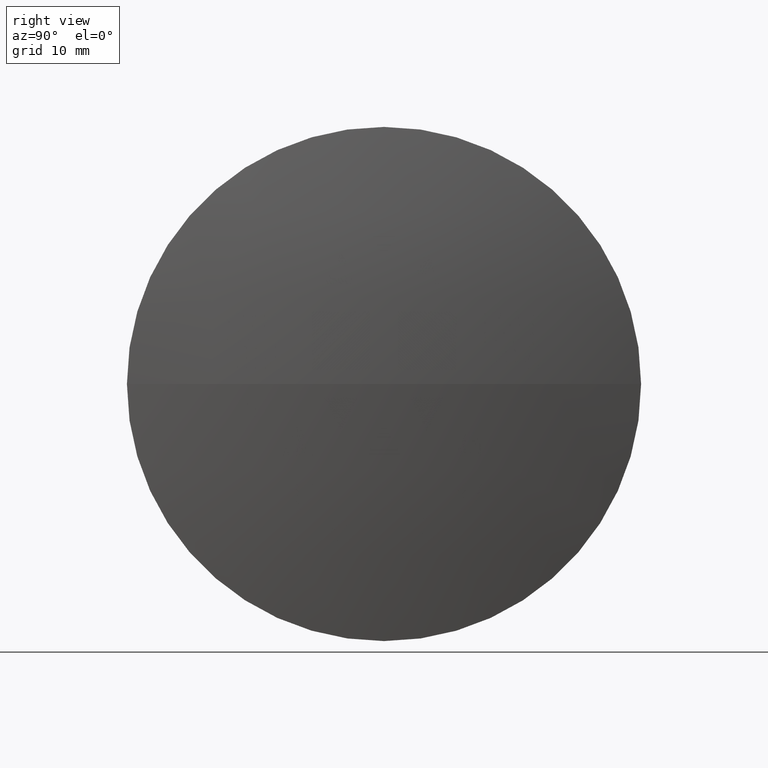
[diagram: clean part render]
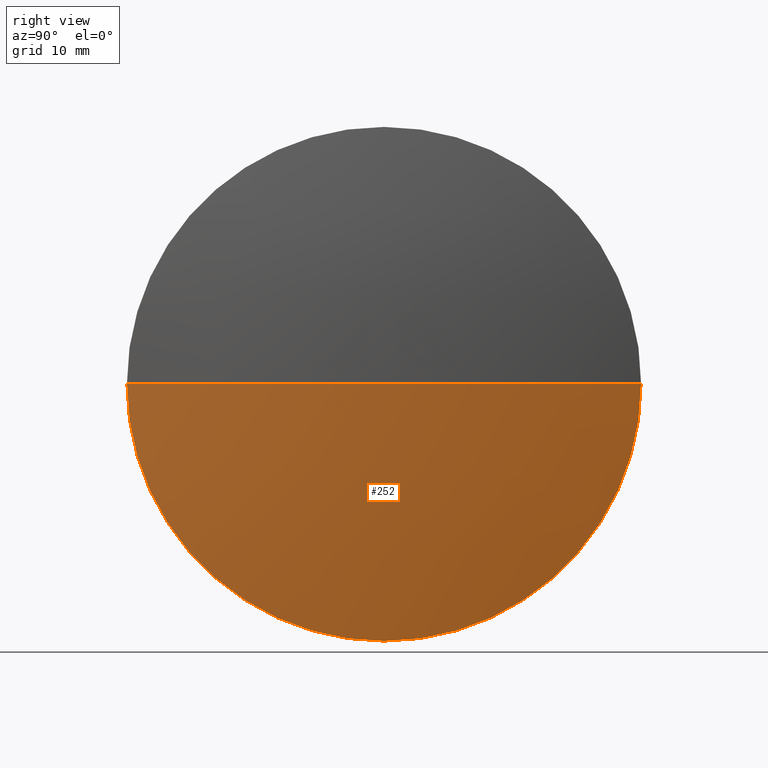
[diagram: same view with one face highlighted and labeled with its STEP entity id]
A machine part, right view. The second image highlights one B-rep face of the part: STEP entity #252.
In plain terms, the highlighted spherical surface has radius 135.608 mm.
Its self-contained STEP definition (entity closure, byte-faithful):
#1 = DIRECTION ( 'NONE',  ( 0.0000000000000000000, 1.000000000000000000, 1.224646799147353200E-016 ) ) ;
#4 = CARTESIAN_POINT ( 'NONE',  ( 174.4163664064679400, 71.83222604636907200, -3.110602869834221600E-015 ) ) ;
#11 = EDGE_CURVE ( 'NONE', #256, #63, #77, .T. ) ;
#12 = DIRECTION ( 'NONE',  ( -0.0000000000000000000, 0.0000000000000000000, -1.000000000000000000 ) ) ;
#13 = CIRCLE ( 'NONE', #55, 25.39999999999999100 ) ;
#26 = AXIS2_PLACEMENT_3D ( 'NONE', #341, #215, #181 ) ;
#33 = DIRECTION ( 'NONE',  ( 0.0000000000000000000, 1.224646799147353200E-016, -1.000000000000000000 ) ) ;
#41 = DIRECTION ( 'NONE',  ( 0.0000000000000000000, 1.000000000000000000, 0.0000000000000000000 ) ) ;
#43 = EDGE_CURVE ( 'NONE', #63, #238, #13, .T. ) ;
#55 = AXIS2_PLACEMENT_3D ( 'NONE', #119, #85, #138 ) ;
#56 = CARTESIAN_POINT ( 'NONE',  ( 174.4163664064679400, 97.23222604636956100, -25.39999999999999100 ) ) ;
#60 = CARTESIAN_POINT ( 'NONE',  ( 176.8163761207535200, 97.23222604636863800, 0.0000000000000000000 ) ) ;
#63 = VERTEX_POINT ( 'NONE', #56 ) ;
#76 = SPHERICAL_SURFACE ( 'NONE', #201, 135.6077941589554100 ) ;
#77 = CIRCLE ( 'NONE', #26, 25.39999999999999100 ) ;
#85 = DIRECTION ( 'NONE',  ( -1.000000000000000000, -0.0000000000000000000, -0.0000000000000000000 ) ) ;
#105 = EDGE_CURVE ( 'NONE', #226, #256, #251, .T. ) ;
#109 = FACE_OUTER_BOUND ( 'NONE', #211, .T. ) ;
#119 = CARTESIAN_POINT ( 'NONE',  ( 174.4163664064679400, 97.23222604636956100, 0.0000000000000000000 ) ) ;
#138 = DIRECTION ( 'NONE',  ( 0.0000000000000000000, 0.0000000000000000000, 1.000000000000000000 ) ) ;
#181 = DIRECTION ( 'NONE',  ( 0.0000000000000000000, 0.0000000000000000000, 1.000000000000000000 ) ) ;
#201 = AXIS2_PLACEMENT_3D ( 'NONE', #320, #12, #41 ) ;
#206 = AXIS2_PLACEMENT_3D ( 'NONE', #273, #276, #302 ) ;
#211 = EDGE_LOOP ( 'NONE', ( #336, #277, #300, #286 ) ) ;
#215 = DIRECTION ( 'NONE',  ( -1.000000000000000000, -0.0000000000000000000, -0.0000000000000000000 ) ) ;
#218 = EDGE_CURVE ( 'NONE', #226, #238, #265, .T. ) ;
#219 = CARTESIAN_POINT ( 'NONE',  ( 174.4163664064679400, 122.6322260463691100, 0.0000000000000000000 ) ) ;
#226 = VERTEX_POINT ( 'NONE', #60 ) ;
#238 = VERTEX_POINT ( 'NONE', #4 ) ;
#251 = CIRCLE ( 'NONE', #206, 135.6077941589554100 ) ;
#252 = ADVANCED_FACE ( 'NONE', ( #109 ), #76, .T. ) ;
#256 = VERTEX_POINT ( 'NONE', #219 ) ;
#265 = CIRCLE ( 'NONE', #330, 135.6077941589554100 ) ;
#273 = CARTESIAN_POINT ( 'NONE',  ( 41.20858196179811000, 97.23222604636862300, 0.0000000000000000000 ) ) ;
#276 = DIRECTION ( 'NONE',  ( -0.0000000000000000000, 0.0000000000000000000, 1.000000000000000000 ) ) ;
#277 = ORIENTED_EDGE ( 'NONE', *, *, #218, .T. ) ;
#286 = ORIENTED_EDGE ( 'NONE', *, *, #11, .F. ) ;
#300 = ORIENTED_EDGE ( 'NONE', *, *, #43, .F. ) ;
#302 = DIRECTION ( 'NONE',  ( 1.000000000000000000, 0.0000000000000000000, 0.0000000000000000000 ) ) ;
#317 = CARTESIAN_POINT ( 'NONE',  ( 41.20858196179811000, 97.23222604636862300, 0.0000000000000000000 ) ) ;
#320 = CARTESIAN_POINT ( 'NONE',  ( 41.20858196179811000, 97.23222604636862300, 0.0000000000000000000 ) ) ;
#330 = AXIS2_PLACEMENT_3D ( 'NONE', #317, #33, #1 ) ;
#336 = ORIENTED_EDGE ( 'NONE', *, *, #105, .F. ) ;
#341 = CARTESIAN_POINT ( 'NONE',  ( 174.4163664064679400, 97.23222604636956100, 0.0000000000000000000 ) ) ;